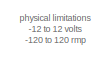
[diagram: root canvas - part 1/5, top left region]
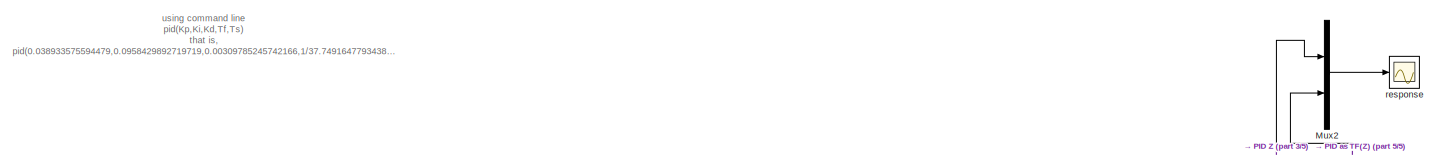
[diagram: root canvas - part 2/5, full width, top band]
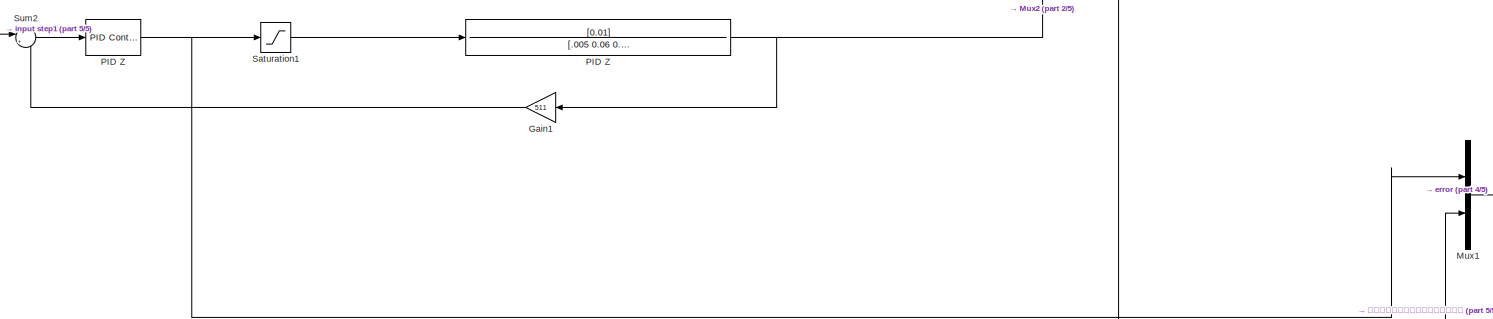
[diagram: root canvas - part 3/5, full width, middle band]
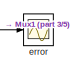
[diagram: root canvas - part 4/5, middle right region]
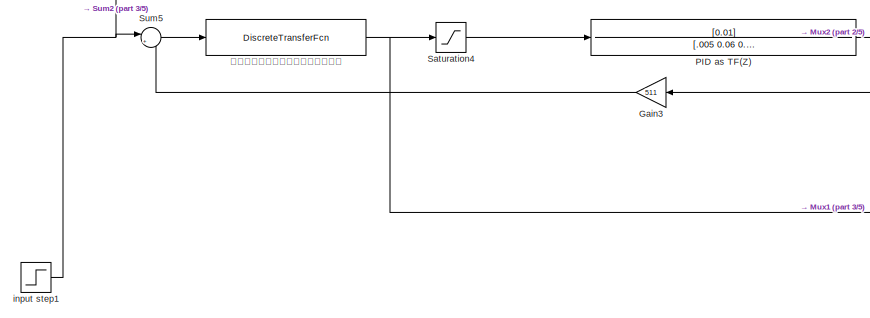
[diagram: root canvas - part 5/5, bottom left region]
MODEL slx_9454e1bc40bc
KIND model
CONFIG AbsTol = auto
CONFIG FixedStep = auto
CONFIG MaxStep = auto
CONFIG MinStep = auto
CONFIG RelTol = 1e-3
CONFIG SampleTimeConstraint = Unconstrained
CONFIG Solver = VariableStepAuto
CONFIG SolverMode = Auto
CONFIG SolverName = VariableStepAuto
CONFIG StartTime = 0.0
CONFIG StopTime = 10.0
BLOCK [Gain] Gain1
  Gain = 511
  OutDataTypeStr = Inherit: Inherit via internal rule
  ParamDataTypeStr = Inherit: Inherit via internal rule
  SaturateOnIntegerOverflow = off
BLOCK [Gain] Gain3
  Gain = 511
  OutDataTypeStr = Inherit: Inherit via internal rule
  ParamDataTypeStr = Inherit: Inherit via internal rule
  SaturateOnIntegerOverflow = off
BLOCK [Mux] Mux1
  DisplayOption = bar
  Inputs = 2
  Ports = [2, 1]
BLOCK [Mux] Mux2
  DisplayOption = bar
  Inputs = 2
  Ports = [2, 1]
BLOCK [Reference] PID Z  REF=simulink/Continuous/PID Controller
  Ports = [1, 1]
  SourceBlock = simulink/Continuous/PID Controller
  SourceType = PID 1dof
BLOCK [TransferFcn] PID Z 
  Denominator = [.005 0.06 0.1001]
  Numerator = [0.01]
BLOCK [TransferFcn] PID as TF(Z)
  Denominator = [.005 0.06 0.1001]
  Numerator = [0.01]
BLOCK [Saturate] Saturation1
  InputPortMap = u0
  LowerLimit = 0
  Ports = [1, 1]
  UpperLimit = 255
BLOCK [Saturate] Saturation4
  InputPortMap = u0
  LowerLimit = 0
  Ports = [1, 1]
  UpperLimit = 255
BLOCK [Sum] Sum2
  IconShape = round
  InputSameDT = off
  Inputs = |+-
  OutDataTypeStr = Inherit: Inherit via internal rule
  Ports = [2, 1]
  SaturateOnIntegerOverflow = off
BLOCK [Sum] Sum5
  IconShape = round
  InputSameDT = off
  Inputs = |+-
  OutDataTypeStr = Inherit: Inherit via internal rule
  Ports = [2, 1]
  SaturateOnIntegerOverflow = off
BLOCK [Scope] error
  Ports = [1]
  ScopeSpecificationString = Simulink.scopes.TimeScopeBlockCfg('CurrentConfiguration', extmgr.ConfigurationSet(extmgr.Configuration('Core','General UI',true),extmgr.Configuration('Core','Source UI',true),extmgr.Configuration('Sources','WiredSimulink',true,'DataLoggingVariableName','ScopeData1'),extmgr.Configuration('Visuals','Time Domain',true,'SerializedDisplays',{struct('MinYLimReal','-94214852583939092000000000000000000000...<+2174ch>
BLOCK [Step] input step1
  After = 511
  SampleTime = 0
  Time = 0
BLOCK [Scope] response
  Ports = [1]
  ScopeSpecificationString = Simulink.scopes.TimeScopeBlockCfg('CurrentConfiguration', extmgr.ConfigurationSet(extmgr.Configuration('Core','General UI',true),extmgr.Configuration('Core','Source UI',true),extmgr.Configuration('Sources','WiredSimulink',true),extmgr.Configuration('Visuals','Time Domain',true,'SerializedDisplays',{struct('MinYLimReal','-0.13033','MaxYLimReal','1.17295','YLabelReal','','MinYLimMag','0.00000','MaxY...<+1705ch>
BLOCK [DiscreteTransferFcn] لماذاااااااااااع 
  Denominator = [ 0.02649   -0.05288   0.02639]
  InputPortMap = u0
  Numerator = [0.004129  -0.008254   0.004125]
  Ports = [1, 1]
  SampleTime = .0001
ANNOTATION (root): using command line pid(Kp,Ki,Kd,Tf,Ts) that is, pid(0.038933575594479,0.0958429892719719,0.00309785245742166,1/37.7491647793438,.0001)
ANNOTATION (root): physical limitations -12 to 12 volts -120 to 120 rmp
LINE Gain1:1 -> Sum2:2
LINE Gain3:1 -> Sum5:2
LINE Mux1:1 -> error:1
LINE Mux2:1 -> response:1
NET PID Z :1 -> Gain1:1, Mux2:1
NET PID Z:1 -> Mux1:1, Saturation1:1
NET PID as TF(Z):1 -> Gain3:1, Mux2:2
LINE Saturation1:1 -> PID Z :1
LINE Saturation4:1 -> PID as TF(Z):1
LINE Sum2:1 -> PID Z:1
LINE Sum5:1 -> لماذاااااااااااع :1
NET input step1:1 -> Sum2:1, Sum5:1
NET لماذاااااااااااع :1 -> Mux1:2, Saturation4:1
note: NET lines group one-source signal fan-out (src -> all destinations, sorted); 1:1 wires keep LINE
